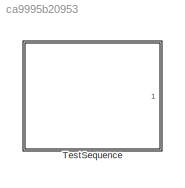
MODEL slx_ca9995b20953
KIND library
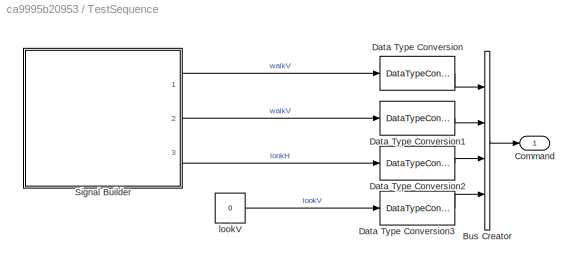
BLOCK [SubSystem] TestSequence
  Ports = [0, 1]
  RequestExecContextInheritance = off
BLOCK [BusCreator] TestSequence/Bus Creator
  DisplayOption = bar
  InheritFromInputs = off
  OutDataTypeStr = Bus: Command
  Ports = [4, 1]
BLOCK [Outport] TestSequence/Command
  IconDisplay = Port number
BLOCK [DataTypeConversion] TestSequence/Data Type Conversion
  OutDataTypeStr = int8
  RndMeth = Floor
  SaturateOnIntegerOverflow = off
BLOCK [DataTypeConversion] TestSequence/Data Type Conversion1
  OutDataTypeStr = int8
  RndMeth = Floor
  SaturateOnIntegerOverflow = off
BLOCK [DataTypeConversion] TestSequence/Data Type Conversion2
  OutDataTypeStr = int8
  RndMeth = Floor
  SaturateOnIntegerOverflow = off
BLOCK [DataTypeConversion] TestSequence/Data Type Conversion3
  OutDataTypeStr = int8
  RndMeth = Floor
  SaturateOnIntegerOverflow = off
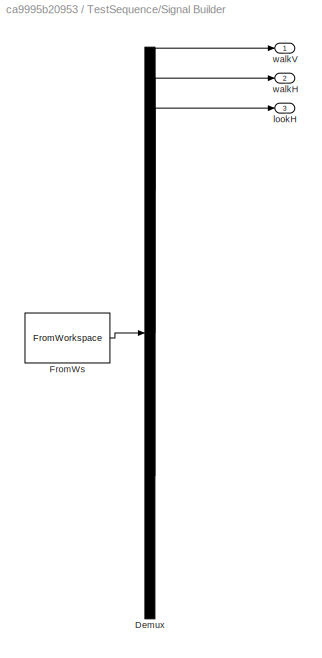
BLOCK [SubSystem] TestSequence/Signal Builder
  ClipboardFcn = sigbuilder_block('clipboard');
  CloseFcn = sigbuilder_block('close');
  ContinueFcn = sigbuilder_block('continue');
  CopyFcn = sigbuilder_block('copy');
  DeleteFcn = sigbuilder_block('delete');
  LoadFcn = sigbuilder_block('load');
  MaskHideContents = on
  ModelCloseFcn = sigbuilder_block('modelClose');
  NameChangeFcn = sigbuilder_block('namechange');
  OpenFcn = sigbuilder_block('open',[437.6 199.2 550.4 400 ]);
  PauseFcn = sigbuilder_block('pause');
  Ports = [0, 3]
  PreSaveFcn = sigbuilder_block('preSave');
  RequestExecContextInheritance = off
  StartFcn = sigbuilder_block('start');
  StopFcn = sigbuilder_block('stop');
  Tag = STV Subsys
BLOCK [Demux] TestSequence/Signal Builder/Demux
  Outputs = 3
  Ports = [1, 3]
  Tag = STV Demux
BLOCK [FromWorkspace] TestSequence/Signal Builder/FromWs
  SampleTime = 0
  Tag = STV FromWs
  VariableName = tuvar
  ZeroCross = on
BLOCK [Outport] TestSequence/Signal Builder/lookH
  IconDisplay = Port number
  Port = 3
  Tag = STV Outport
BLOCK [Outport] TestSequence/Signal Builder/walkH
  IconDisplay = Port number
  Port = 2
  Tag = STV Outport
BLOCK [Outport] TestSequence/Signal Builder/walkV
  IconDisplay = Port number
  Tag = STV Outport
BLOCK [Constant] TestSequence/lookV
  Value = 0
LINE TestSequence/Bus Creator:1 -> TestSequence/Command:1
LINE TestSequence/Data Type Conversion1:1 -> TestSequence/Bus Creator:2
LINE TestSequence/Data Type Conversion2:1 -> TestSequence/Bus Creator:3
LINE TestSequence/Data Type Conversion3:1 -> TestSequence/Bus Creator:4
LINE TestSequence/Data Type Conversion:1 -> TestSequence/Bus Creator:1
LINE TestSequence/Signal Builder:1 -> TestSequence/Data Type Conversion:1
LINE TestSequence/Signal Builder:2 -> TestSequence/Data Type Conversion1:1
LINE TestSequence/Signal Builder:3 -> TestSequence/Data Type Conversion2:1
LINE TestSequence/lookV:1 -> TestSequence/Data Type Conversion3:1
